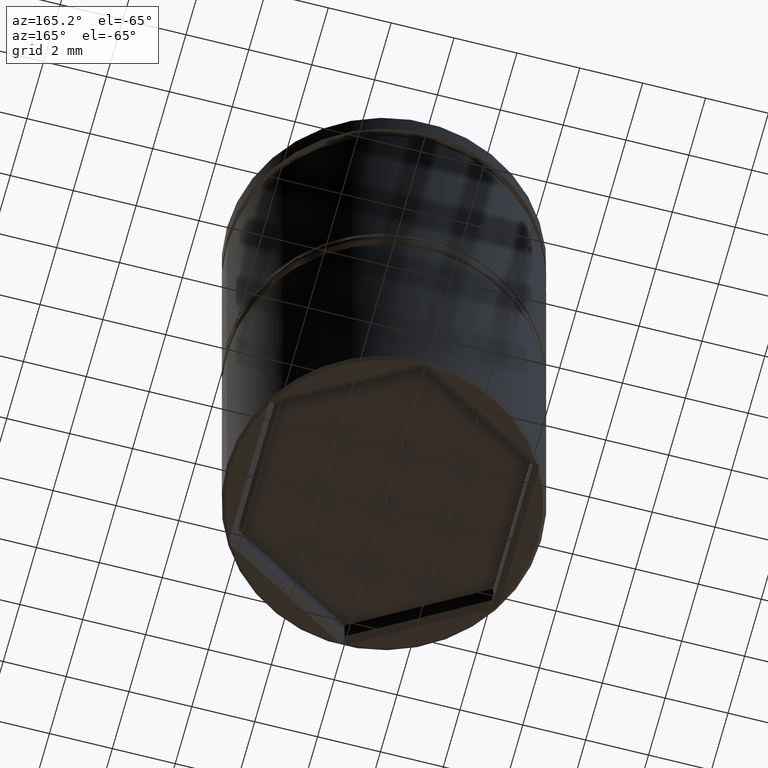
[diagram: clean part render]
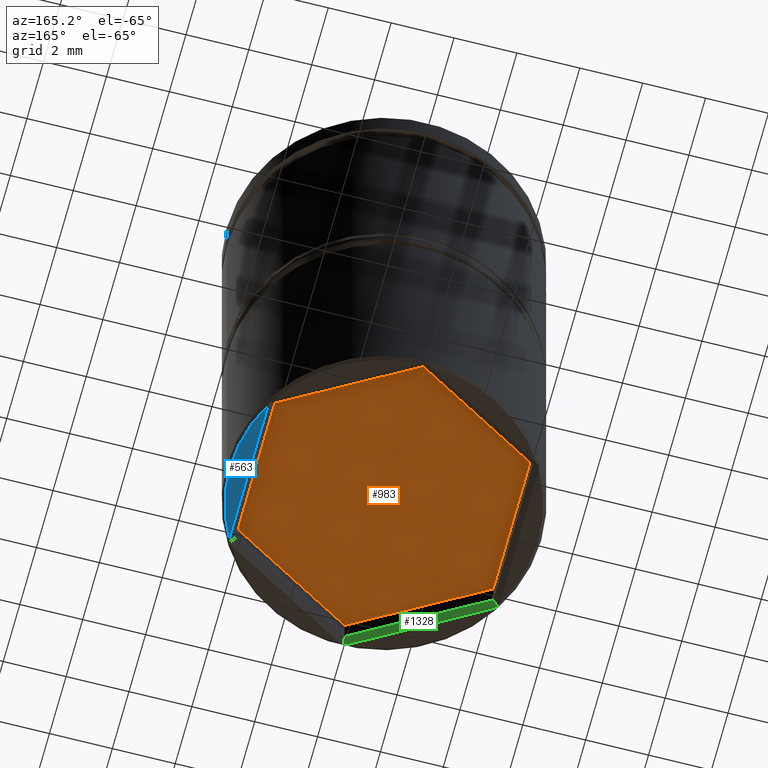
[diagram: same view with three faces highlighted in distinct colors, each labeled with its STEP entity id]
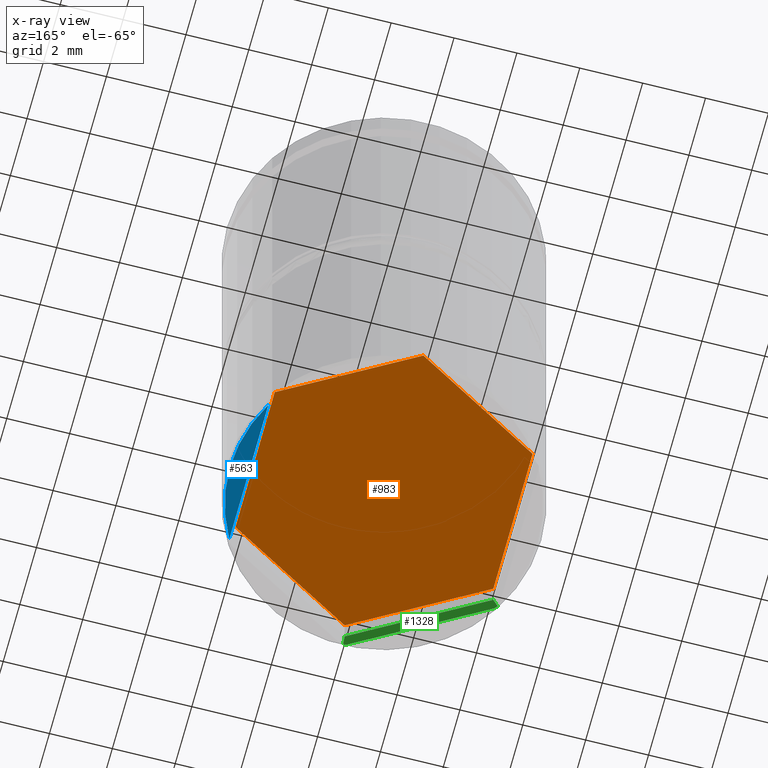
[diagram: x-ray of the same camera — body ghosted, the three highlighted faces saturated]
A machine part, auxiliary view with three faces highlighted in distinct colors.
The next image is the same camera in x-ray (body ghosted, the three faces saturated) — at least one of them is partly hidden behind the body in this view.
Their STEP definitions:

[orange] entity #983 — the highlighted planar face has unit normal (0, 0, -1).
#9 = EDGE_CURVE ( 'NONE', #909, #718, #620, .T. ) ;
#25 = ORIENTED_EDGE ( 'NONE', *, *, #81, .T. ) ;
#48 = VECTOR ( 'NONE', #199, 1000.000000000000114 ) ;
#67 = PLANE ( 'NONE',  #928 ) ;
#72 = VECTOR ( 'NONE', #79, 1000.000000000000000 ) ;
#79 = DIRECTION ( 'NONE',  ( 0.000000000000000000, -1.000000000000000000, 0.000000000000000000 ) ) ;
#81 = EDGE_CURVE ( 'NONE', #718, #444, #537, .T. ) ;
#159 = DIRECTION ( 'NONE',  ( -0.8660254037844385966, 0.5000000000000001110, 0.000000000000000000 ) ) ;
#175 = DIRECTION ( 'NONE',  ( -1.000000000000000000, 0.000000000000000000, -0.000000000000000000 ) ) ;
#179 = LINE ( 'NONE', #1247, #72 ) ;
#199 = DIRECTION ( 'NONE',  ( 0.8660254037844388186, 0.4999999999999997780, 0.000000000000000000 ) ) ;
#261 = VERTEX_POINT ( 'NONE', #270 ) ;
#270 = CARTESIAN_POINT ( 'NONE',  ( -8.646952822150503169E-16, -4.734272207354920603, -16.50000000000000000 ) ) ;
#277 = DIRECTION ( 'NONE',  ( 0.000000000000000000, 0.000000000000000000, -1.000000000000000000 ) ) ;
#299 = CARTESIAN_POINT ( 'NONE',  ( -4.099999999999990763, 2.367136103677462078, -16.50000000000000000 ) ) ;
#332 = CARTESIAN_POINT ( 'NONE',  ( 0.000000000000000000, 4.734272207354920603, -16.50000000000000000 ) ) ;
#404 = DIRECTION ( 'NONE',  ( -0.8660254037844387076, -0.4999999999999999445, 0.000000000000000000 ) ) ;
#415 = EDGE_CURVE ( 'NONE', #1197, #261, #1383, .T. ) ;
#444 = VERTEX_POINT ( 'NONE', #997 ) ;
#497 = EDGE_LOOP ( 'NONE', ( #596, #25, #899, #1234, #790, #1101 ) ) ;
#500 = FACE_OUTER_BOUND ( 'NONE', #497, .T. ) ;
#537 = LINE ( 'NONE', #332, #951 ) ;
#541 = LINE ( 'NONE', #788, #1227 ) ;
#596 = ORIENTED_EDGE ( 'NONE', *, *, #9, .T. ) ;
#620 = LINE ( 'NONE', #857, #48 ) ;
#625 = CARTESIAN_POINT ( 'NONE',  ( 0.000000000000000000, 4.734272207354920603, -16.50000000000000000 ) ) ;
#668 = EDGE_CURVE ( 'NONE', #1195, #909, #541, .T. ) ;
#718 = VERTEX_POINT ( 'NONE', #625 ) ;
#757 = DIRECTION ( 'NONE',  ( 0.8660254037844384856, -0.5000000000000002220, 0.000000000000000000 ) ) ;
#788 = CARTESIAN_POINT ( 'NONE',  ( -4.099999999999990763, -2.367136103677459857, -16.50000000000000000 ) ) ;
#790 = ORIENTED_EDGE ( 'NONE', *, *, #794, .T. ) ;
#794 = EDGE_CURVE ( 'NONE', #261, #1195, #1108, .T. ) ;
#804 = CARTESIAN_POINT ( 'NONE',  ( -4.099999999999990763, -2.367136103677459857, -16.50000000000000000 ) ) ;
#825 = CARTESIAN_POINT ( 'NONE',  ( 0.000000000000000000, 0.000000000000000000, -16.50000000000000000 ) ) ;
#857 = CARTESIAN_POINT ( 'NONE',  ( -4.099999999999990763, 2.367136103677462078, -16.50000000000000000 ) ) ;
#899 = ORIENTED_EDGE ( 'NONE', *, *, #1243, .T. ) ;
#909 = VERTEX_POINT ( 'NONE', #299 ) ;
#928 = AXIS2_PLACEMENT_3D ( 'NONE', #825, #277, #175 ) ;
#951 = VECTOR ( 'NONE', #757, 1000.000000000000227 ) ;
#967 = CARTESIAN_POINT ( 'NONE',  ( 4.099999999999990763, -2.367136103677460301, -16.50000000000000000 ) ) ;
#983 = ADVANCED_FACE ( 'NONE', ( #500 ), #67, .T. ) ;
#997 = CARTESIAN_POINT ( 'NONE',  ( 4.099999999999990763, 2.367136103677458969, -16.50000000000000000 ) ) ;
#1084 = VECTOR ( 'NONE', #404, 1000.000000000000000 ) ;
#1087 = VECTOR ( 'NONE', #159, 1000.000000000000000 ) ;
#1101 = ORIENTED_EDGE ( 'NONE', *, *, #668, .T. ) ;
#1108 = LINE ( 'NONE', #1186, #1087 ) ;
#1186 = CARTESIAN_POINT ( 'NONE',  ( -8.646952822150503169E-16, -4.734272207354920603, -16.50000000000000000 ) ) ;
#1195 = VERTEX_POINT ( 'NONE', #804 ) ;
#1197 = VERTEX_POINT ( 'NONE', #1232 ) ;
#1217 = DIRECTION ( 'NONE',  ( 0.000000000000000000, 1.000000000000000000, 0.000000000000000000 ) ) ;
#1227 = VECTOR ( 'NONE', #1217, 1000.000000000000000 ) ;
#1232 = CARTESIAN_POINT ( 'NONE',  ( 4.099999999999990763, -2.367136103677460301, -16.50000000000000000 ) ) ;
#1234 = ORIENTED_EDGE ( 'NONE', *, *, #415, .T. ) ;
#1243 = EDGE_CURVE ( 'NONE', #444, #1197, #179, .T. ) ;
#1247 = CARTESIAN_POINT ( 'NONE',  ( 4.099999999999990763, 2.367136103677458969, -16.50000000000000000 ) ) ;
#1383 = LINE ( 'NONE', #967, #1084 ) ;

[blue] entity #563 — the highlighted planar face has unit normal (0, 0, -1).
#3 = CARTESIAN_POINT ( 'NONE',  ( 4.299999999999996270, 2.349468024894134199, -17.50000000000000000 ) ) ;
#87 = DIRECTION ( 'NONE',  ( -1.000000000000000000, 0.000000000000000000, 0.000000000000000000 ) ) ;
#91 = DIRECTION ( 'NONE',  ( 0.000000000000000000, 0.000000000000000000, -1.000000000000000000 ) ) ;
#146 = ORIENTED_EDGE ( 'NONE', *, *, #514, .T. ) ;
#177 = VERTEX_POINT ( 'NONE', #731 ) ;
#180 = VERTEX_POINT ( 'NONE', #3 ) ;
#279 = DIRECTION ( 'NONE',  ( -1.000000000000000000, 0.000000000000000000, 0.000000000000000000 ) ) ;
#284 = CARTESIAN_POINT ( 'NONE',  ( 0.000000000000000000, 5.000000000000000000, -17.50000000000000000 ) ) ;
#338 = CARTESIAN_POINT ( 'NONE',  ( 4.299999999999996270, -2.349468024894134199, -17.50000000000000000 ) ) ;
#385 = CIRCLE ( 'NONE', #677, 4.899999999999991473 ) ;
#388 = VECTOR ( 'NONE', #817, 1000.000000000000000 ) ;
#477 = DIRECTION ( 'NONE',  ( 0.000000000000000000, 0.000000000000000000, -1.000000000000000000 ) ) ;
#490 = ORIENTED_EDGE ( 'NONE', *, *, #1200, .T. ) ;
#501 = EDGE_CURVE ( 'NONE', #1038, #180, #878, .T. ) ;
#514 = EDGE_CURVE ( 'NONE', #180, #177, #385, .T. ) ;
#563 = ADVANCED_FACE ( 'NONE', ( #1249 ), #1143, .T. ) ;
#593 = CARTESIAN_POINT ( 'NONE',  ( 0.000000000000000000, 0.000000000000000000, -17.50000000000000000 ) ) ;
#677 = AXIS2_PLACEMENT_3D ( 'NONE', #593, #477, #279 ) ;
#696 = ORIENTED_EDGE ( 'NONE', *, *, #501, .T. ) ;
#709 = DIRECTION ( 'NONE',  ( -1.000000000000000000, 0.000000000000000000, -0.000000000000000000 ) ) ;
#731 = CARTESIAN_POINT ( 'NONE',  ( 4.899999999999991473, 0.000000000000000000, -17.50000000000000000 ) ) ;
#807 = CIRCLE ( 'NONE', #1336, 4.899999999999991473 ) ;
#817 = DIRECTION ( 'NONE',  ( -0.000000000000000000, 1.000000000000000000, 0.000000000000000000 ) ) ;
#878 = LINE ( 'NONE', #1320, #388 ) ;
#912 = AXIS2_PLACEMENT_3D ( 'NONE', #284, #91, #709 ) ;
#1019 = CARTESIAN_POINT ( 'NONE',  ( 0.000000000000000000, 0.000000000000000000, -17.50000000000000000 ) ) ;
#1038 = VERTEX_POINT ( 'NONE', #338 ) ;
#1143 = PLANE ( 'NONE',  #912 ) ;
#1146 = DIRECTION ( 'NONE',  ( 0.000000000000000000, 0.000000000000000000, -1.000000000000000000 ) ) ;
#1182 = EDGE_LOOP ( 'NONE', ( #146, #490, #696 ) ) ;
#1200 = EDGE_CURVE ( 'NONE', #177, #1038, #807, .T. ) ;
#1249 = FACE_OUTER_BOUND ( 'NONE', #1182, .T. ) ;
#1320 = CARTESIAN_POINT ( 'NONE',  ( 4.299999999999996270, 2.367136103677458969, -17.50000000000000000 ) ) ;
#1336 = AXIS2_PLACEMENT_3D ( 'NONE', #1019, #1146, #87 ) ;

[green] entity #1328 — the highlighted planar face has unit normal (0.3536, 0.6124, -0.7071).
#16 = B_SPLINE_CURVE_WITH_KNOTS ( 'NONE', 3,
 ( #855, #317, #742, #1176 ),
 .UNSPECIFIED., .F., .F.,
 ( 4, 4 ),
 ( 1.897353801849632760E-19, 0.0001233298202642969267 ),
 .UNSPECIFIED. ) ;
#22 = CARTESIAN_POINT ( 'NONE',  ( -4.269734859267336979, -2.465132570366324938, -17.46973485926734071 ) ) ;
#37 = EDGE_CURVE ( 'NONE', #771, #348, #1295, .T. ) ;
#55 = LINE ( 'NONE', #471, #751 ) ;
#57 = ORIENTED_EDGE ( 'NONE', *, *, #344, .T. ) ;
#70 = VECTOR ( 'NONE', #737, 1000.000000000000114 ) ;
#128 = CARTESIAN_POINT ( 'NONE',  ( -4.184698994937568806, -2.549175223826016357, -17.50000000000000000 ) ) ;
#223 = B_SPLINE_CURVE_WITH_KNOTS ( 'NONE', 3,
 ( #22, #863, #753, #128 ),
 .UNSPECIFIED., .F., .F.,
 ( 4, 4 ),
 ( 0.000000000000000000, 0.0001233298202642985259 ),
 .UNSPECIFIED. ) ;
#252 = ORIENTED_EDGE ( 'NONE', *, *, #802, .F. ) ;
#317 = CARTESIAN_POINT ( 'NONE',  ( -0.07687852044744455937, -4.909424634638709151, -17.49012571178598208 ) ) ;
#344 = EDGE_CURVE ( 'NONE', #1235, #492, #508, .T. ) ;
#348 = VERTEX_POINT ( 'NONE', #1046 ) ;
#387 = EDGE_CURVE ( 'NONE', #633, #771, #16, .T. ) ;
#417 = DIRECTION ( 'NONE',  ( 1.258874581275472364E-15, 0.7559289460184541731, 0.6546536707079774198 ) ) ;
#471 = CARTESIAN_POINT ( 'NONE',  ( -0.1000000000000036277, -4.907477288111813607, -17.50000000000000000 ) ) ;
#492 = VERTEX_POINT ( 'NONE', #783 ) ;
#508 = LINE ( 'NONE', #730, #70 ) ;
#580 = DIRECTION ( 'NONE',  ( 0.3535533905932738419, 0.6123724356957945814, -0.7071067811865474617 ) ) ;
#622 = ORIENTED_EDGE ( 'NONE', *, *, #387, .F. ) ;
#633 = VERTEX_POINT ( 'NONE', #776 ) ;
#664 = PLANE ( 'NONE',  #1021 ) ;
#730 = CARTESIAN_POINT ( 'NONE',  ( -4.099999999999990763, -2.367136103677459857, -17.29999999999999716 ) ) ;
#737 = DIRECTION ( 'NONE',  ( 0.6546536707079770867, 0.3779644730092272531, 0.6546536707079770867 ) ) ;
#742 = CARTESIAN_POINT ( 'NONE',  ( -0.03844244460728724749, -4.919964518745050697, -17.48003548125494433 ) ) ;
#751 = VECTOR ( 'NONE', #1073, 999.9999999999998863 ) ;
#753 = CARTESIAN_POINT ( 'NONE',  ( -4.213247191338535202, -2.521291069032201015, -17.49012571178598208 ) ) ;
#771 = VERTEX_POINT ( 'NONE', #1091 ) ;
#772 = VECTOR ( 'NONE', #417, 1000.000000000000114 ) ;
#776 = CARTESIAN_POINT ( 'NONE',  ( -0.1153010050624291294, -4.898643248720151000, -17.50000000000000000 ) ) ;
#783 = CARTESIAN_POINT ( 'NONE',  ( -4.099999999999990763, -2.367136103677459857, -17.29999999999999716 ) ) ;
#802 = EDGE_CURVE ( 'NONE', #1235, #1248, #223, .T. ) ;
#832 = ORIENTED_EDGE ( 'NONE', *, *, #1016, .F. ) ;
#855 = CARTESIAN_POINT ( 'NONE',  ( -0.1153010050624291294, -4.898643248720151000, -17.50000000000000000 ) ) ;
#863 = CARTESIAN_POINT ( 'NONE',  ( -4.241593036647651083, -2.493274392986011279, -17.48003548125494433 ) ) ;
#898 = DIRECTION ( 'NONE',  ( 0.8660254037844385966, -0.5000000000000001110, 0.000000000000000000 ) ) ;
#907 = LINE ( 'NONE', #1318, #1181 ) ;
#971 = DIRECTION ( 'NONE',  ( -0.8660254037844385966, 0.5000000000000001110, 0.000000000000000000 ) ) ;
#1015 = CARTESIAN_POINT ( 'NONE',  ( -8.646952822150503169E-16, -4.734272207354920603, -17.29999999999999716 ) ) ;
#1016 = EDGE_CURVE ( 'NONE', #348, #492, #907, .T. ) ;
#1021 = AXIS2_PLACEMENT_3D ( 'NONE', #1015, #580, #898 ) ;
#1046 = CARTESIAN_POINT ( 'NONE',  ( -8.646952822150503169E-16, -4.734272207354920603, -17.29999999999999716 ) ) ;
#1048 = CARTESIAN_POINT ( 'NONE',  ( -8.646952822150503169E-16, -4.734272207354920603, -17.29999999999999716 ) ) ;
#1073 = DIRECTION ( 'NONE',  ( 0.8660254037844385966, -0.5000000000000002220, 0.000000000000000000 ) ) ;
#1091 = CARTESIAN_POINT ( 'NONE',  ( -1.715807869564690930E-15, -4.930265140732650764, -17.46973485926734071 ) ) ;
#1122 = FACE_OUTER_BOUND ( 'NONE', #1315, .T. ) ;
#1134 = EDGE_CURVE ( 'NONE', #1248, #633, #55, .T. ) ;
#1176 = CARTESIAN_POINT ( 'NONE',  ( -1.715807869564690930E-15, -4.930265140732650764, -17.46973485926734071 ) ) ;
#1181 = VECTOR ( 'NONE', #971, 1000.000000000000000 ) ;
#1235 = VERTEX_POINT ( 'NONE', #1238 ) ;
#1238 = CARTESIAN_POINT ( 'NONE',  ( -4.269734859267336979, -2.465132570366324938, -17.46973485926734071 ) ) ;
#1242 = ORIENTED_EDGE ( 'NONE', *, *, #1134, .F. ) ;
#1248 = VERTEX_POINT ( 'NONE', #1367 ) ;
#1295 = LINE ( 'NONE', #1048, #772 ) ;
#1315 = EDGE_LOOP ( 'NONE', ( #57, #832, #1346, #622, #1242, #252 ) ) ;
#1318 = CARTESIAN_POINT ( 'NONE',  ( -4.099999999999990763, -2.367136103677460301, -17.29999999999999716 ) ) ;
#1328 = ADVANCED_FACE ( 'NONE', ( #1122 ), #664, .T. ) ;
#1346 = ORIENTED_EDGE ( 'NONE', *, *, #37, .F. ) ;
#1367 = CARTESIAN_POINT ( 'NONE',  ( -4.184698994937568806, -2.549175223826016357, -17.50000000000000000 ) ) ;